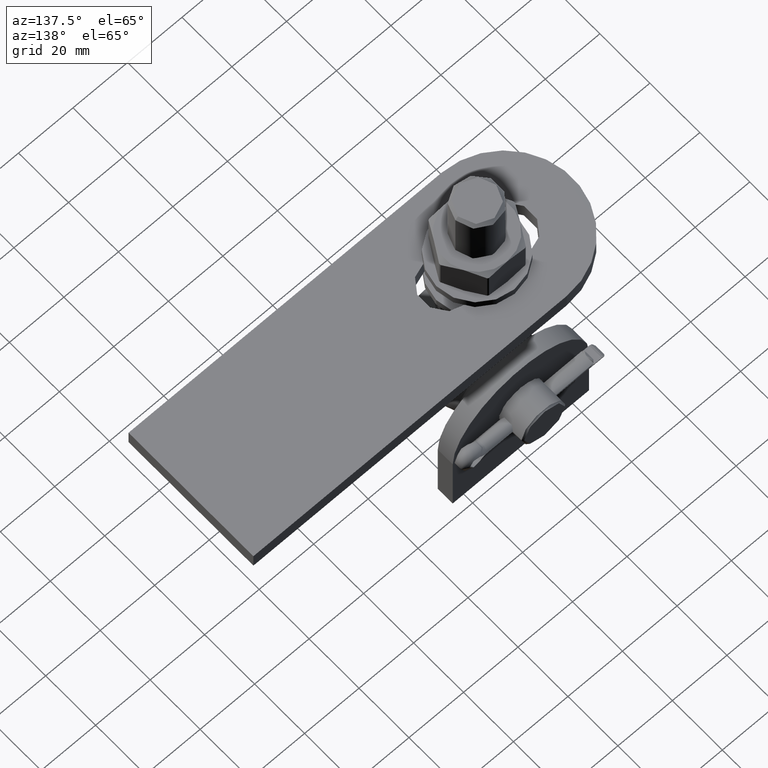
[diagram: clean part render]
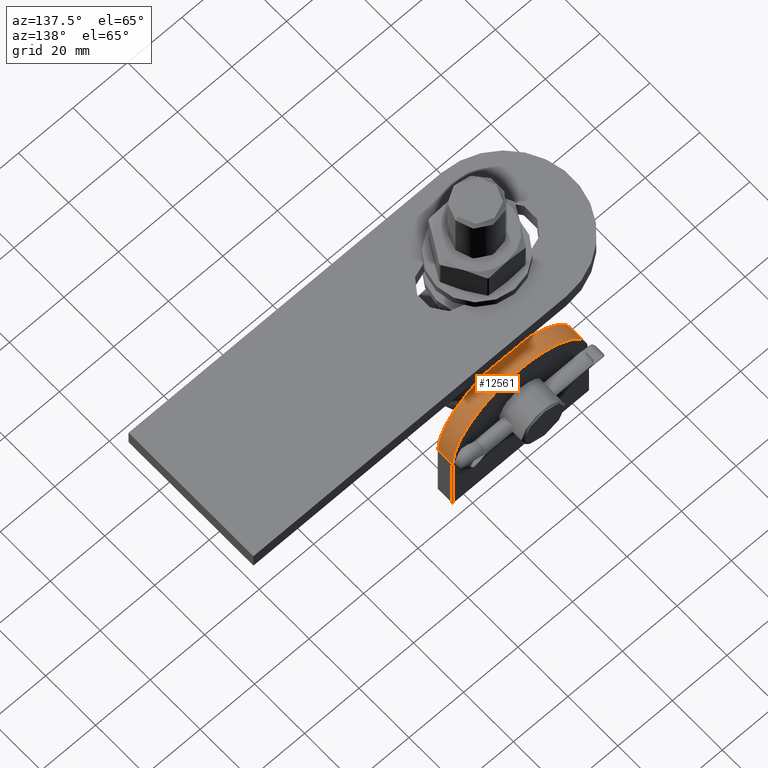
[diagram: same view with one face highlighted and labeled with its STEP entity id]
A machine part, auxiliary view. The second image highlights one B-rep face of the part: STEP entity #12561.
In plain terms, the highlighted cylindrical surface (partial cylindrical patch) has radius 25 mm, axis along (-0, -1, -0).
Its self-contained STEP definition (entity closure, byte-faithful):
#397 = CARTESIAN_POINT ( 'NONE',  ( -24.99999999999999645, 2.999999999999999112, -2.602085213965210642E-15 ) ) ;
#410 = EDGE_CURVE ( 'NONE', #28222, #6452, #14601, .T. ) ;
#1635 = DIRECTION ( 'NONE',  ( 0.000000000000000000, 1.000000000000000000, -0.000000000000000000 ) ) ;
#2107 = CARTESIAN_POINT ( 'NONE',  ( 25.00000000000000711, -2.999999999999999112, -1.301042606982605321E-14 ) ) ;
#3707 = CARTESIAN_POINT ( 'NONE',  ( 25.00000000000000711, 2.999999999999999112, -1.301042606982605321E-14 ) ) ;
#3961 = AXIS2_PLACEMENT_3D ( 'NONE', #18611, #18708, #16569 ) ;
#4069 = DIRECTION ( 'NONE',  ( 0.000000000000000000, 0.000000000000000000, -1.000000000000000000 ) ) ;
#4567 = DIRECTION ( 'NONE',  ( 0.000000000000000000, 1.000000000000000000, -0.000000000000000000 ) ) ;
#5088 = CIRCLE ( 'NONE', #20085, 25.00000000000000355 ) ;
#6350 = CARTESIAN_POINT ( 'NONE',  ( 6.938893903907228378E-15, -2.999999999999999112, -6.938893903907228378E-15 ) ) ;
#6452 = VERTEX_POINT ( 'NONE', #2107 ) ;
#7200 = CYLINDRICAL_SURFACE ( 'NONE', #3961, 25.00000000000000355 ) ;
#8126 = CARTESIAN_POINT ( 'NONE',  ( 25.00000000000000711, 2.999999999999999112, -1.301042606982605321E-14 ) ) ;
#12181 = EDGE_CURVE ( 'NONE', #17587, #6452, #5088, .T. ) ;
#12561 = ADVANCED_FACE ( 'NONE', ( #26735 ), #7200, .T. ) ;
#12977 = CIRCLE ( 'NONE', #18294, 25.00000000000000355 ) ;
#14601 = LINE ( 'NONE', #3707, #14980 ) ;
#14766 = DIRECTION ( 'NONE',  ( -0.000000000000000000, -1.000000000000000000, -0.000000000000000000 ) ) ;
#14980 = VECTOR ( 'NONE', #14766, 1000.000000000000000 ) ;
#15550 = ORIENTED_EDGE ( 'NONE', *, *, #28993, .T. ) ;
#15624 = CARTESIAN_POINT ( 'NONE',  ( 6.938893903907228378E-15, 2.999999999999999112, -6.938893903907228378E-15 ) ) ;
#15877 = EDGE_LOOP ( 'NONE', ( #26676, #26058, #25054, #15550 ) ) ;
#16352 = VECTOR ( 'NONE', #24961, 1000.000000000000000 ) ;
#16569 = DIRECTION ( 'NONE',  ( 0.000000000000000000, 0.000000000000000000, -1.000000000000000000 ) ) ;
#17587 = VERTEX_POINT ( 'NONE', #23593 ) ;
#18294 = AXIS2_PLACEMENT_3D ( 'NONE', #15624, #4567, #26835 ) ;
#18611 = CARTESIAN_POINT ( 'NONE',  ( 6.938893903907228378E-15, 2.999999999999999112, -6.938893903907228378E-15 ) ) ;
#18708 = DIRECTION ( 'NONE',  ( -0.000000000000000000, -1.000000000000000000, -0.000000000000000000 ) ) ;
#20085 = AXIS2_PLACEMENT_3D ( 'NONE', #6350, #1635, #4069 ) ;
#23593 = CARTESIAN_POINT ( 'NONE',  ( -24.99999999999999645, -2.999999999999999112, -2.602085213965210642E-15 ) ) ;
#24027 = LINE ( 'NONE', #397, #16352 ) ;
#24398 = VERTEX_POINT ( 'NONE', #25563 ) ;
#24961 = DIRECTION ( 'NONE',  ( -0.000000000000000000, -1.000000000000000000, -0.000000000000000000 ) ) ;
#25054 = ORIENTED_EDGE ( 'NONE', *, *, #26888, .F. ) ;
#25563 = CARTESIAN_POINT ( 'NONE',  ( -24.99999999999999645, 2.999999999999999112, -2.602085213965210642E-15 ) ) ;
#26058 = ORIENTED_EDGE ( 'NONE', *, *, #410, .F. ) ;
#26676 = ORIENTED_EDGE ( 'NONE', *, *, #12181, .T. ) ;
#26735 = FACE_OUTER_BOUND ( 'NONE', #15877, .T. ) ;
#26835 = DIRECTION ( 'NONE',  ( 0.000000000000000000, 0.000000000000000000, -1.000000000000000000 ) ) ;
#26888 = EDGE_CURVE ( 'NONE', #24398, #28222, #12977, .T. ) ;
#28222 = VERTEX_POINT ( 'NONE', #8126 ) ;
#28993 = EDGE_CURVE ( 'NONE', #24398, #17587, #24027, .T. ) ;